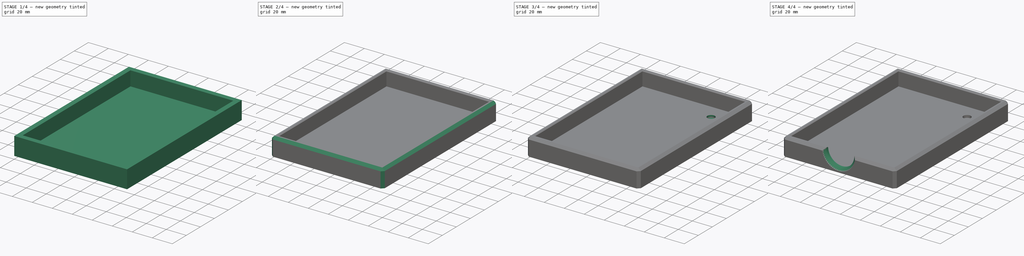
[diagram: build sequence overview — one tinted view per stage of 4, left to right]
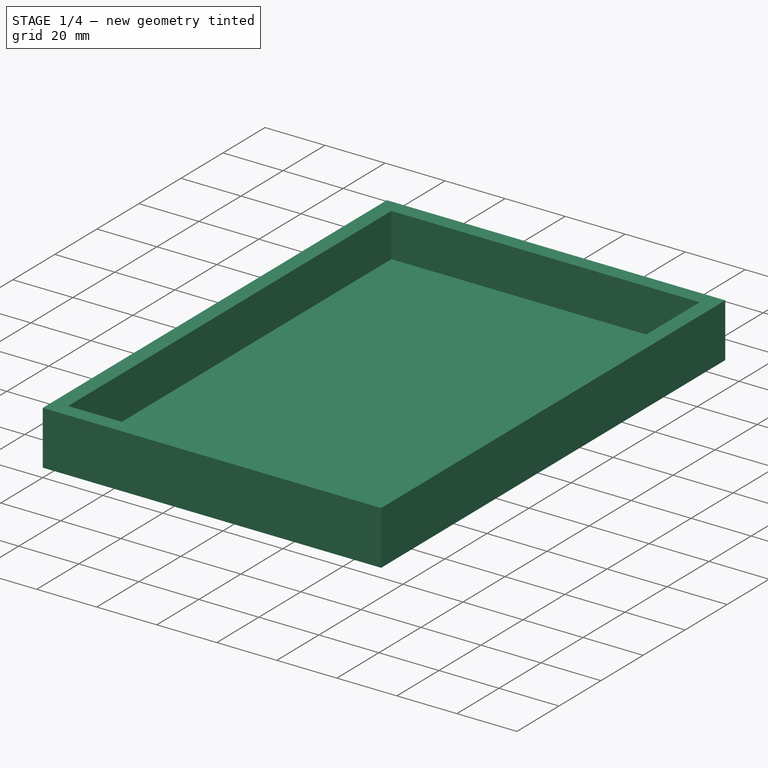
[diagram: stage 1 of 4 — iso view after this stage's code; geometry added in this stage tinted green]
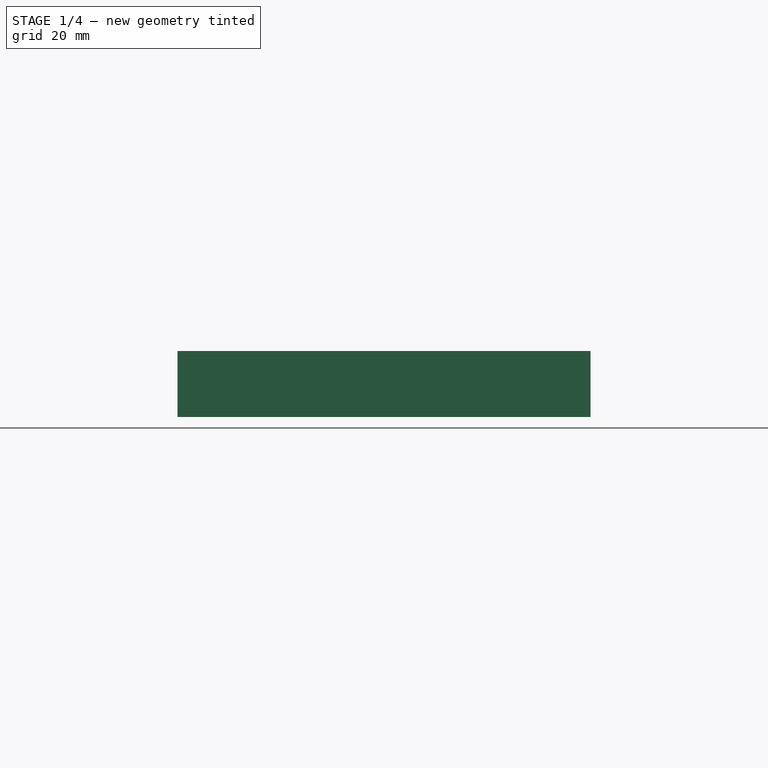
[diagram: stage 1 of 4 — front view after this stage's code; geometry added in this stage tinted green]
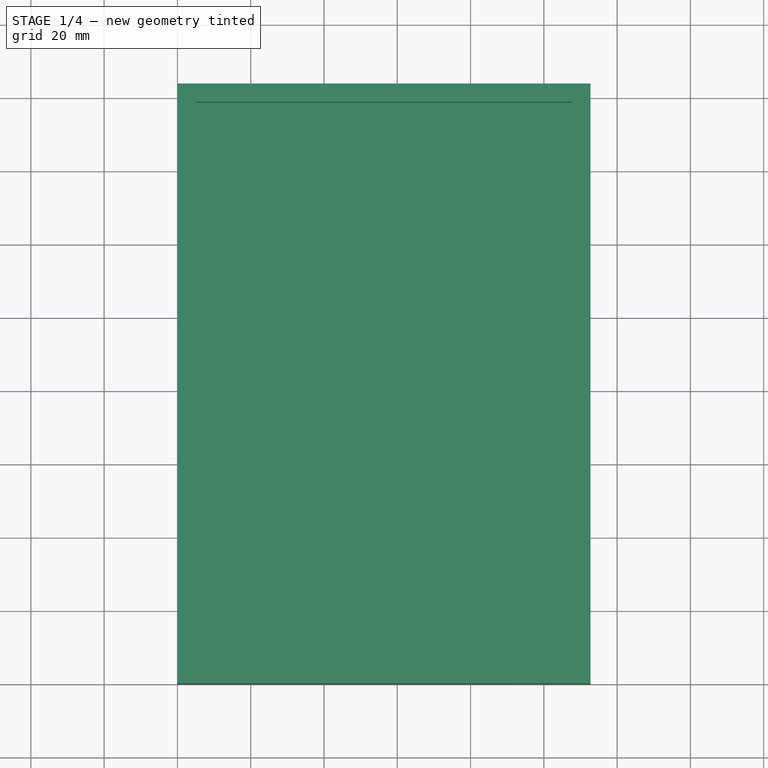
[diagram: stage 1 of 4 — top view after this stage's code; geometry added in this stage tinted green]
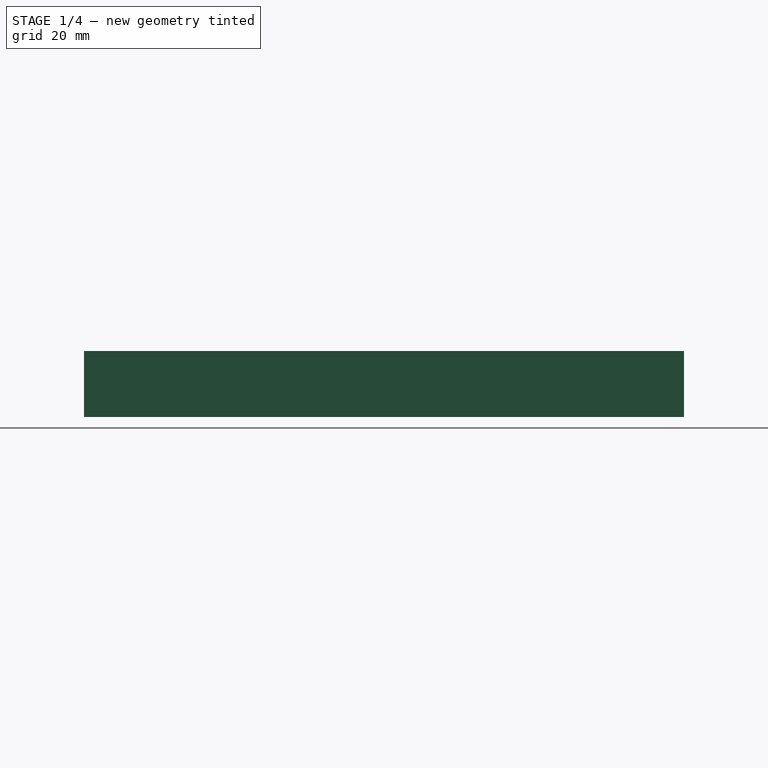
[diagram: stage 1 of 4 — right view after this stage's code; geometry added in this stage tinted green]
FCSTD DOCUMENT  (FreeCAD 0.19R24291 (Git))
Label: paper-mount
License: All rights reserved
LicenseURL: http://en.wikipedia.org/wiki/All_rights_reserved
objects: Sketcher::SketchObject×5, PartDesign::Pocket×5, PartDesign::Chamfer×3, PartDesign::Pad×2, PartDesign::Body×1
note: 26 computed .brp shape members not serialized (recipe doc carries the construction recipe); baked Part::Feature solids carry a one-line shape summary decoded from their .brp

FEATURE [Sketcher::SketchObject] Sketch
  FullyConstrained = true
  MapMode = 5
  Support = -> [XY_Plane]
  sketch-geometry (4):
    g0: LineSegment StartX=0 StartY=0 StartZ=0 EndX=112.75 EndY=0 EndZ=0
    g1: LineSegment StartX=112.75 StartY=0 StartZ=0 EndX=112.75 EndY=163.75 EndZ=0
    g2: LineSegment StartX=112.75 StartY=163.75 StartZ=0 EndX=0 EndY=163.75 EndZ=0
    g3: LineSegment StartX=0 StartY=163.75 StartZ=0 EndX=0 EndY=0 EndZ=0
  constraints (11):
    c: Coincident(g0,g1)
    c: Coincident(g1,g2)
    c: Coincident(g2,g3)
    c: Coincident(g3,g0)
    c: Horizontal(g0)
    c: Horizontal(g2)
    c: Vertical(g1)
    c: Vertical(g3)
    c: Coincident(g0,g-1)
    c: DistanceX(g2,g2) = 112.75
    c: DistanceY(g3,g3) = 163.75
FEATURE [PartDesign::Pad] Pad
  Direction = (1,1,1)
  Length = 18
  Length2 = 100
  Profile = -> Sketch
  Reversed = true
  Type = 0
FEATURE [Sketcher::SketchObject] Sketch001
  FullyConstrained = true
  MapMode = 5
  Support = -> [XY_Plane]
  sketch-geometry (4):
    g0: LineSegment StartX=5 StartY=5 StartZ=0 EndX=107.75 EndY=5 EndZ=0
    g1: LineSegment StartX=107.75 StartY=5 StartZ=0 EndX=107.75 EndY=158.75 EndZ=0
    g2: LineSegment StartX=107.75 StartY=158.75 StartZ=0 EndX=5 EndY=158.75 EndZ=0
    g3: LineSegment StartX=5 StartY=158.75 StartZ=0 EndX=5 EndY=5 EndZ=0
  constraints (12):
    c: Coincident(g0,g1)
    c: Coincident(g1,g2)
    c: Coincident(g2,g3)
    c: Coincident(g3,g0)
    c: Horizontal(g0)
    c: Horizontal(g2)
    c: Vertical(g1)
    c: Vertical(g3)
    c: DistanceX(g2,g2) = 102.75
    c: DistanceY(g3,g3) = 153.75
    c: DistanceX(g-1,g0) = 5
    c: DistanceY(g-1,g0) = 5
FEATURE [PartDesign::Pocket] Pocket
  BaseFeature = -> Pad
  Length = 14.5
  Length2 = 100
  Profile = -> Sketch001
  Type = 0
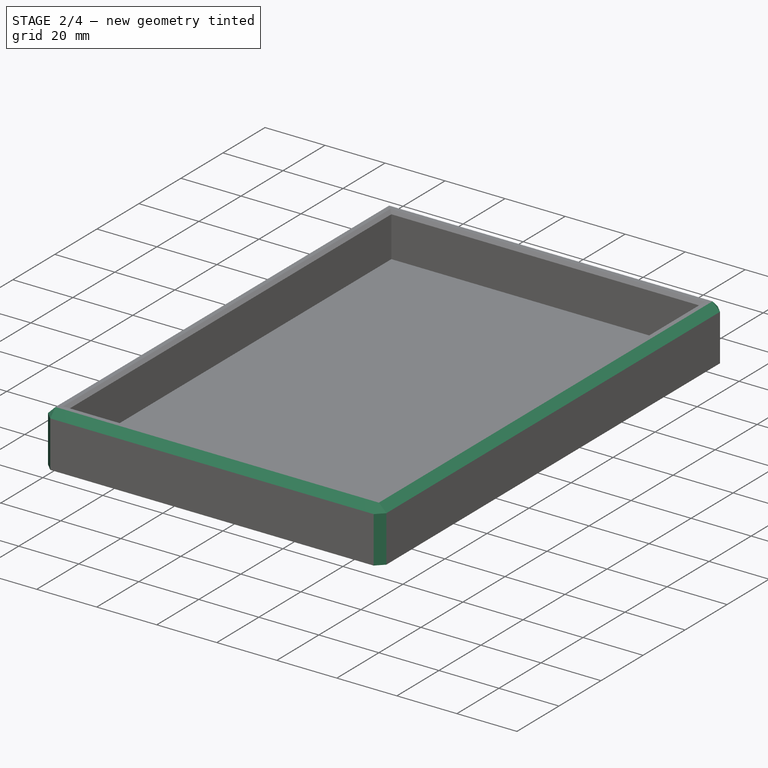
[diagram: stage 2 of 4 — iso view after this stage's code; geometry added in this stage tinted green]
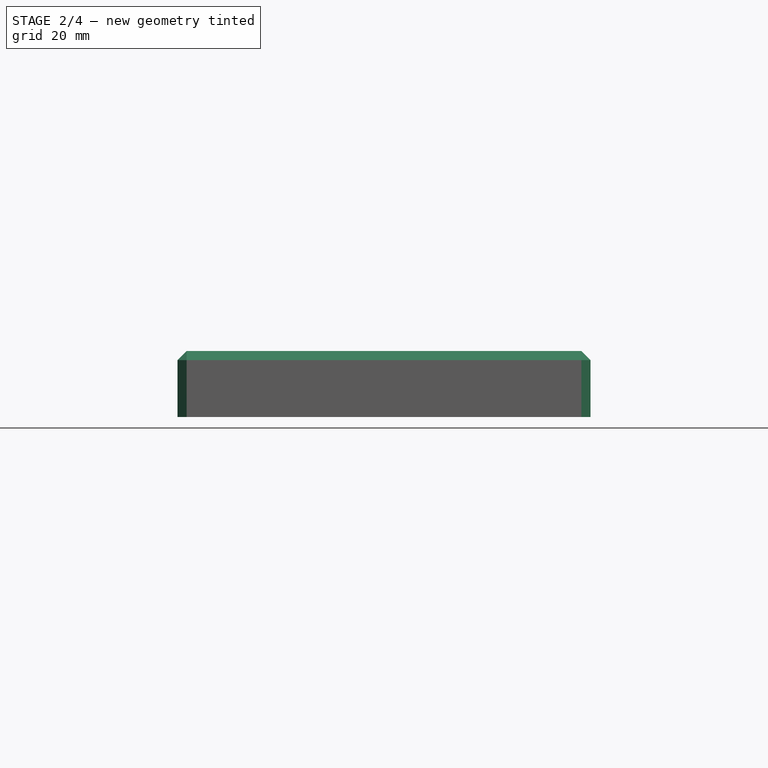
[diagram: stage 2 of 4 — front view after this stage's code; geometry added in this stage tinted green]
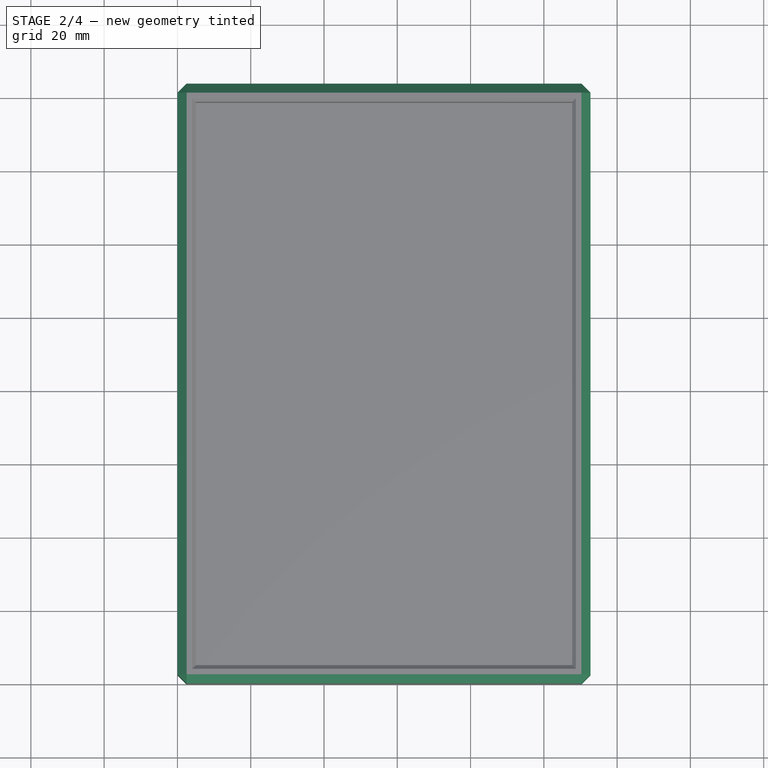
[diagram: stage 2 of 4 — top view after this stage's code; geometry added in this stage tinted green]
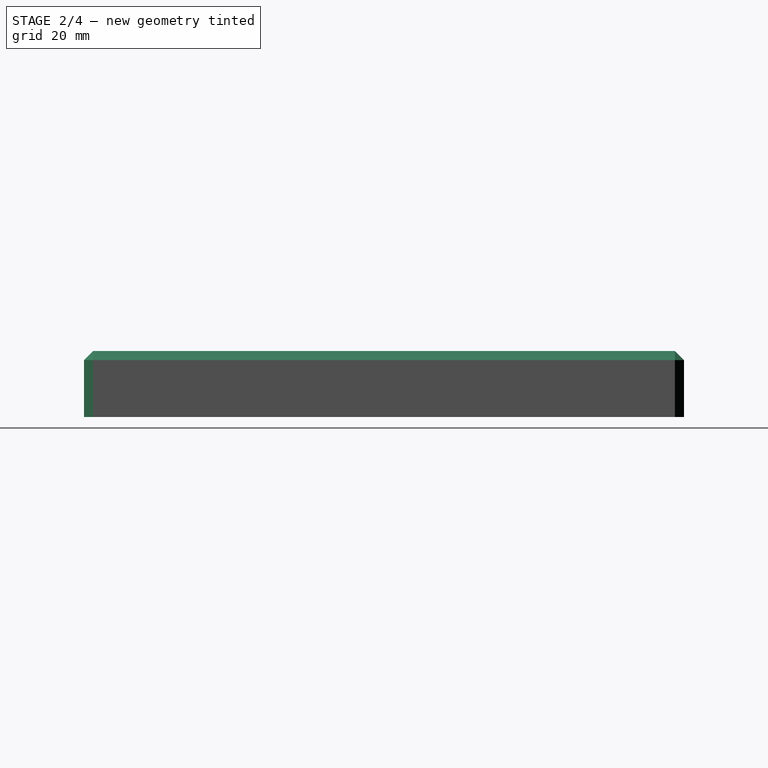
[diagram: stage 2 of 4 — right view after this stage's code; geometry added in this stage tinted green]
FEATURE [PartDesign::Chamfer] Chamfer
  Angle = 45
  Base = -> Pocket [Edge15,Edge14,Edge13,Edge12]
  BaseFeature = -> Pocket
  ChamferType = 0
  FlipDirection = false
  Size = 1
  Size2 = 1
  SupportTransform = false
FEATURE [PartDesign::Chamfer] Chamfer001
  Angle = 45
  Base = -> Chamfer [Edge6,Edge8,Edge7,Edge5,Edge17,Edge18,Edge22,Edge20]
  BaseFeature = -> Chamfer
  ChamferType = 0
  FlipDirection = false
  Size = 2.5
  Size2 = 1
  SupportTransform = false
FEATURE [Sketcher::SketchObject] Sketch002
  FullyConstrained = true
  MapMode = 5
  Placement = pos=(0,0,-18) rot=(1,0,0;3.14159rad)
  Support = -> [Chamfer001]
  sketch-geometry (76):
    g0: Circle CenterX=10 CenterY=-7.5 CenterZ=0 NormalX=0 NormalY=0 NormalZ=1 AngleXU=0 Radius=3.75
    g1: Circle CenterX=40 CenterY=-7.5 CenterZ=0 NormalX=0 NormalY=0 NormalZ=1 AngleXU=0 Radius=3.75
    g2: LineSegment StartX=10 StartY=-7.5 StartZ=0 EndX=40 EndY=-7.5 EndZ=0
    g3: Circle CenterX=70 CenterY=-7.5 CenterZ=0 NormalX=0 NormalY=0 NormalZ=1 AngleXU=0 Radius=3.75
    g4: LineSegment StartX=40 StartY=-7.5 StartZ=0 EndX=70 EndY=-7.5 EndZ=0
    g5: Circle CenterX=100 CenterY=-7.5 CenterZ=0 NormalX=0 NormalY=0 NormalZ=1 AngleXU=0 Radius=3.75
    g6: LineSegment StartX=70 StartY=-7.5 StartZ=0 EndX=100 EndY=-7.5 EndZ=0
    g7: Circle CenterX=10 CenterY=-37.5 CenterZ=0 NormalX=0 NormalY=0 NormalZ=1 AngleXU=0 Radius=3.75
    g8: LineSegment StartX=10 StartY=-7.5 StartZ=0 EndX=10 EndY=-37.5 EndZ=0
    g9: Circle CenterX=40 CenterY=-37.5 CenterZ=0 NormalX=0 NormalY=0 NormalZ=1 AngleXU=0 Radius=3.75
    g10: LineSegment StartX=10 StartY=-37.5 StartZ=0 EndX=40 EndY=-37.5 EndZ=0
    g11: Circle CenterX=70 CenterY=-37.5 CenterZ=0 NormalX=0 NormalY=0 NormalZ=1 AngleXU=0 Radius=3.75
    g12: LineSegment StartX=40 StartY=-37.5 StartZ=0 EndX=70 EndY=-37.5 EndZ=0
    g13: Circle CenterX=100 CenterY=-37.5 CenterZ=0 NormalX=0 NormalY=0 NormalZ=1 AngleXU=0 Radius=3.75
    g14: LineSegment StartX=70 StartY=-37.5 StartZ=0 EndX=100 EndY=-37.5 EndZ=0
    g15: Circle CenterX=10 CenterY=-67.5 CenterZ=0 NormalX=0 NormalY=0 NormalZ=1 AngleXU=0 Radius=3.75
    g16: LineSegment StartX=10 StartY=-37.5 StartZ=0 EndX=10 EndY=-67.5 EndZ=0
    g17: Circle CenterX=40 CenterY=-67.5 CenterZ=0 NormalX=0 NormalY=0 NormalZ=1 AngleXU=0 Radius=3.75
    g18: LineSegment StartX=10 StartY=-67.5 StartZ=0 EndX=40 EndY=-67.5 EndZ=0
    g19: Circle CenterX=70 CenterY=-67.5 CenterZ=0 NormalX=0 NormalY=0 NormalZ=1 AngleXU=0 Radius=3.75
    g20: LineSegment StartX=40 StartY=-67.5 StartZ=0 EndX=70 EndY=-67.5 EndZ=0
    g21: Circle CenterX=100 CenterY=-67.5 CenterZ=0 NormalX=0 NormalY=0 NormalZ=1 AngleXU=0 Radius=3.75
    g22: LineSegment StartX=70 StartY=-67.5 StartZ=0 EndX=100 EndY=-67.5 EndZ=0
    g23: Circle CenterX=10 CenterY=-97.5 CenterZ=0 NormalX=0 NormalY=0 NormalZ=1 AngleXU=0 Radius=3.75
    g24: LineSegment StartX=10 StartY=-67.5 StartZ=0 EndX=10 EndY=-97.5 EndZ=0
    g25: Circle CenterX=40 CenterY=-97.5 CenterZ=0 NormalX=0 NormalY=0 NormalZ=1 AngleXU=0 Radius=3.75
    g26: LineSegment StartX=10 StartY=-97.5 StartZ=0 EndX=40 EndY=-97.5 EndZ=0
    g27: Circle CenterX=70 CenterY=-97.5 CenterZ=0 NormalX=0 NormalY=0 NormalZ=1 AngleXU=0 Radius=3.75
    g28: LineSegment StartX=40 StartY=-97.5 StartZ=0 EndX=70 EndY=-97.5 EndZ=0
    g29: Circle CenterX=100 CenterY=-97.5 CenterZ=0 NormalX=0 NormalY=0 NormalZ=1 AngleXU=0 Radius=3.75
    g30: LineSegment StartX=70 StartY=-97.5 StartZ=0 EndX=100 EndY=-97.5 EndZ=0
    g31: Circle CenterX=10 CenterY=-127.5 CenterZ=0 NormalX=0 NormalY=0 NormalZ=1 AngleXU=0 Radius=3.75
    g32: LineSegment StartX=10 StartY=-97.5 StartZ=0 EndX=10 EndY=-127.5 EndZ=0
    g33: Circle CenterX=40 CenterY=-127.5 CenterZ=0 NormalX=0 NormalY=0 NormalZ=1 AngleXU=0 Radius=3.75
    g34: LineSegment StartX=10 StartY=-127.5 StartZ=0 EndX=40 EndY=-127.5 EndZ=0
    g35: Circle CenterX=70 CenterY=-127.5 CenterZ=0 NormalX=0 NormalY=0 NormalZ=1 AngleXU=0 Radius=3.75
    g36: LineSegment StartX=40 StartY=-127.5 StartZ=0 EndX=70 EndY=-127.5 EndZ=0
    g37: Circle CenterX=100 CenterY=-127.5 CenterZ=0 NormalX=0 NormalY=0 NormalZ=1 AngleXU=0 Radius=3.75
    g38: LineSegment StartX=70 StartY=-127.5 StartZ=0 EndX=100 EndY=-127.5 EndZ=0
    g39: Circle CenterX=10 CenterY=-157.5 CenterZ=0 NormalX=0 NormalY=0 NormalZ=1 AngleXU=0 Radius=3.75
    g40: LineSegment StartX=10 StartY=-127.5 StartZ=0 EndX=10 EndY=-157.5 EndZ=0
    g41: Circle CenterX=40 CenterY=-157.5 CenterZ=0 NormalX=0 NormalY=0 NormalZ=1 AngleXU=0 Radius=3.75
    g42: LineSegment StartX=10 StartY=-157.5 StartZ=0 EndX=40 EndY=-157.5 EndZ=0
    g43: Circle CenterX=70 CenterY=-157.5 CenterZ=0 NormalX=0 NormalY=0 NormalZ=1 AngleXU=0 Radius=3.75
    g44: LineSegment StartX=40 StartY=-157.5 StartZ=0 EndX=70 EndY=-157.5 EndZ=0
    g45: Circle CenterX=100 CenterY=-157.5 CenterZ=0 NormalX=0 NormalY=0 NormalZ=1 AngleXU=0 Radius=3.75
    g46: LineSegment StartX=70 StartY=-157.5 StartZ=0 EndX=100 EndY=-157.5 EndZ=0
    g47: Circle CenterX=25 CenterY=-22.5 CenterZ=0 NormalX=0 NormalY=0 NormalZ=1 AngleXU=0 Radius=3.75
    g48: Circle CenterX=55 CenterY=-22.5 CenterZ=0 NormalX=0 NormalY=0 NormalZ=1 AngleXU=0 Radius=3.75
    g49: LineSegment StartX=25 StartY=-22.5 StartZ=0 EndX=55 EndY=-22.5 EndZ=0
    g50: Circle CenterX=85 CenterY=-22.5 CenterZ=0 NormalX=0 NormalY=0 NormalZ=1 AngleXU=0 Radius=3.75
    g51: LineSegment StartX=55 StartY=-22.5 StartZ=0 EndX=85 EndY=-22.5 EndZ=0
    g52: Circle CenterX=25 CenterY=-52.5 CenterZ=0 NormalX=0 NormalY=0 NormalZ=1 AngleXU=0 Radius=3.75
    g53: LineSegment StartX=25 StartY=-22.5 StartZ=0 EndX=25 EndY=-52.5 EndZ=0
    g54: Circle CenterX=55 CenterY=-52.5 CenterZ=0 NormalX=0 NormalY=0 NormalZ=1 AngleXU=0 Radius=3.75
    g55: LineSegment StartX=25 StartY=-52.5 StartZ=0 EndX=55 EndY=-52.5 EndZ=0
    g56: Circle CenterX=85 CenterY=-52.5 CenterZ=0 NormalX=0 NormalY=0 NormalZ=1 AngleXU=0 Radius=3.75
    g57: LineSegment StartX=55 StartY=-52.5 StartZ=0 EndX=85 EndY=-52.5 EndZ=0
    g58: Circle CenterX=25 CenterY=-82.5 CenterZ=0 NormalX=0 NormalY=0 NormalZ=1 AngleXU=0 Radius=3.75
    g59: LineSegment StartX=25 StartY=-52.5 StartZ=0 EndX=25 EndY=-82.5 EndZ=0
    g60: Circle CenterX=55 CenterY=-82.5 CenterZ=0 NormalX=0 NormalY=0 NormalZ=1 AngleXU=0 Radius=3.75
    g61: LineSegment StartX=25 StartY=-82.5 StartZ=0 EndX=55 EndY=-82.5 EndZ=0
    g62: Circle CenterX=85 CenterY=-82.5 CenterZ=0 NormalX=0 NormalY=0 NormalZ=1 AngleXU=0 Radius=3.75
    g63: LineSegment StartX=55 StartY=-82.5 StartZ=0 EndX=85 EndY=-82.5 EndZ=0
    g64: Circle CenterX=25 CenterY=-112.5 CenterZ=0 NormalX=0 NormalY=0 NormalZ=1 AngleXU=0 Radius=3.75
    g65: LineSegment StartX=25 StartY=-82.5 StartZ=0 EndX=25 EndY=-112.5 EndZ=0
    g66: Circle CenterX=55 CenterY=-112.5 CenterZ=0 NormalX=0 NormalY=0 NormalZ=1 AngleXU=0 Radius=3.75
    g67: LineSegment StartX=25 StartY=-112.5 StartZ=0 EndX=55 EndY=-112.5 EndZ=0
    g68: Circle CenterX=85 CenterY=-112.5 CenterZ=0 NormalX=0 NormalY=0 NormalZ=1 AngleXU=0 Radius=3.75
    g69: LineSegment StartX=55 StartY=-112.5 StartZ=0 EndX=85 EndY=-112.5 EndZ=0
    g70: Circle CenterX=25 CenterY=-142.5 CenterZ=0 NormalX=0 NormalY=0 NormalZ=1 AngleXU=0 Radius=3.75
    g71: LineSegment StartX=25 StartY=-112.5 StartZ=0 EndX=25 EndY=-142.5 EndZ=0
    g72: Circle CenterX=55 CenterY=-142.5 CenterZ=0 NormalX=0 NormalY=0 NormalZ=1 AngleXU=0 Radius=3.75
    g73: LineSegment StartX=25 StartY=-142.5 StartZ=0 EndX=55 EndY=-142.5 EndZ=0
    g74: Circle CenterX=85 CenterY=-142.5 CenterZ=0 NormalX=0 NormalY=0 NormalZ=1 AngleXU=0 Radius=3.75
    g75: LineSegment StartX=55 StartY=-142.5 StartZ=0 EndX=85 EndY=-142.5 EndZ=0
  constraints (191):
    c: Diameter(g0) = 7.5
    c: Diameter(g1) = 7.5
    c: Coincident(g0,g2)
    c: Coincident(g1,g2)
    c: Distance(g2) = 30
    c: Diameter(g3) = 7.5
    c: Coincident(g1,g4)
    c: Coincident(g3,g4)
    c: Equal(g2,g4)
    c: Parallel(g4,g2)
    c: Diameter(g5) = 7.5
    c: Coincident(g3,g6)
    c: Coincident(g5,g6)
    c: Equal(g2,g6)
    c: Parallel(g6,g2)
    c: Diameter(g7) = 7.5
    c: Coincident(g0,g8)
    c: Coincident(g7,g8)
    c: Equal(g8,g2)
    c: Perpendicular(g8,g2)
    c: Diameter(g9) = 7.5
    c: Coincident(g7,g10)
    c: Coincident(g9,g10)
    c: Equal(g2,g10)
    c: Parallel(g10,g2)
    c: Diameter(g11) = 7.5
    c: Coincident(g9,g12)
    c: Coincident(g11,g12)
    c: Equal(g2,g12)
    c: Parallel(g12,g2)
    c: Diameter(g13) = 7.5
    c: Coincident(g11,g14)
    c: Coincident(g13,g14)
    c: Equal(g2,g14)
    c: Parallel(g14,g2)
    c: Diameter(g15) = 7.5
    c: Coincident(g7,g16)
    c: Coincident(g15,g16)
    c: Equal(g8,g16)
    c: Perpendicular(g16,g2)
    c: Diameter(g17) = 7.5
    c: Coincident(g15,g18)
    c: Coincident(g17,g18)
    c: Equal(g2,g18)
    c: Parallel(g18,g2)
    c: Diameter(g19) = 7.5
    c: Coincident(g17,g20)
    c: Coincident(g19,g20)
    c: Equal(g2,g20)
    c: Parallel(g20,g2)
    c: Diameter(g21) = 7.5
    c: Coincident(g19,g22)
    c: Coincident(g21,g22)
    c: Equal(g2,g22)
    c: Parallel(g22,g2)
    c: Diameter(g23) = 7.5
    c: Coincident(g15,g24)
    c: Coincident(g23,g24)
    c: Equal(g8,g24)
    c: Perpendicular(g24,g2)
    c: Diameter(g25) = 7.5
    c: Coincident(g23,g26)
    c: Coincident(g25,g26)
    c: Equal(g2,g26)
    c: Parallel(g26,g2)
    c: Diameter(g27) = 7.5
    c: Coincident(g25,g28)
    c: Coincident(g27,g28)
    c: Equal(g2,g28)
    c: Parallel(g28,g2)
    c: Diameter(g29) = 7.5
    c: Coincident(g27,g30)
    c: Coincident(g29,g30)
    c: Equal(g2,g30)
    c: Parallel(g30,g2)
    c: Diameter(g31) = 7.5
    c: Coincident(g23,g32)
    c: Coincident(g31,g32)
    c: Equal(g8,g32)
    c: Perpendicular(g32,g2)
    c: Diameter(g33) = 7.5
    c: Coincident(g31,g34)
    c: Coincident(g33,g34)
    c: Equal(g2,g34)
    c: Parallel(g34,g2)
    c: Diameter(g35) = 7.5
    c: Coincident(g33,g36)
    c: Coincident(g35,g36)
    c: Equal(g2,g36)
    c: Parallel(g36,g2)
    c: Diameter(g37) = 7.5
    c: Coincident(g35,g38)
    c: Coincident(g37,g38)
    c: Equal(g2,g38)
    c: Parallel(g38,g2)
    c: Diameter(g39) = 7.5
    c: Coincident(g31,g40)
    c: Coincident(g39,g40)
    c: Equal(g8,g40)
    c: Perpendicular(g40,g2)
    c: Diameter(g41) = 7.5
    c: Coincident(g39,g42)
    c: Coincident(g41,g42)
    c: Equal(g2,g42)
    c: Parallel(g42,g2)
    c: Diameter(g43) = 7.5
    c: Coincident(g41,g44)
    c: Coincident(g43,g44)
    c: Equal(g2,g44)
    c: Parallel(g44,g2)
    c: Diameter(g45) = 7.5
    c: Coincident(g43,g46)
    c: Coincident(g45,g46)
    c: Equal(g2,g46)
    c: Parallel(g46,g2)
    c: Horizontal(g2)
    c: DistanceX(g-1,g0) = 10
    c: DistanceY(g0,g-1) = 7.5
    c: Diameter(g47) = 7.5
    c: Diameter(g48) = 7.5
    c: Coincident(g47,g49)
    c: Coincident(g48,g49)
    c: Distance(g49) = 30
    c: Diameter(g50) = 7.5
    c: Coincident(g48,g51)
    c: Coincident(g50,g51)
    c: Equal(g49,g51)
    c: Parallel(g51,g49)
    c: Diameter(g52) = 7.5
    c: Coincident(g47,g53)
    c: Coincident(g52,g53)
    c: Equal(g53,g49)
    c: Perpendicular(g53,g49)
    c: Diameter(g54) = 7.5
    c: Coincident(g52,g55)
    c: Coincident(g54,g55)
    c: Equal(g49,g55)
    c: Parallel(g55,g49)
    c: Diameter(g56) = 7.5
    c: Coincident(g54,g57)
    c: Coincident(g56,g57)
    c: Equal(g49,g57)
    c: Parallel(g57,g49)
    c: Diameter(g58) = 7.5
    c: Coincident(g52,g59)
    c: Coincident(g58,g59)
    c: Equal(g53,g59)
    c: Perpendicular(g59,g49)
    c: Diameter(g60) = 7.5
    c: Coincident(g58,g61)
    c: Coincident(g60,g61)
    c: Equal(g49,g61)
    c: Parallel(g61,g49)
    c: Diameter(g62) = 7.5
    c: Coincident(g60,g63)
    c: Coincident(g62,g63)
    c: Equal(g49,g63)
    c: Parallel(g63,g49)
    c: Diameter(g64) = 7.5
    c: Coincident(g58,g65)
    c: Coincident(g64,g65)
    c: Equal(g53,g65)
    c: Perpendicular(g65,g49)
    c: Diameter(g66) = 7.5
    c: Coincident(g64,g67)
    c: Coincident(g66,g67)
    c: Equal(g49,g67)
    c: Parallel(g67,g49)
    c: Diameter(g68) = 7.5
    c: Coincident(g66,g69)
    c: Coincident(g68,g69)
    c: Equal(g49,g69)
    c: Parallel(g69,g49)
    c: Diameter(g70) = 7.5
    c: Coincident(g64,g71)
    c: Coincident(g70,g71)
    c: Equal(g53,g71)
    c: Perpendicular(g71,g49)
    c: Diameter(g72) = 7.5
    c: Coincident(g70,g73)
    c: Coincident(g72,g73)
    c: Equal(g49,g73)
    c: Parallel(g73,g49)
    c: Diameter(g74) = 7.5
    c: Coincident(g72,g75)
    c: Coincident(g74,g75)
    c: Equal(g49,g75)
    c: Parallel(g75,g49)
    c: Horizontal(g49)
    c: DistanceX(g0,g47) = 15
    c: DistanceY(g47,g0) = 15
FEATURE [PartDesign::Pocket] Pocket001
  BaseFeature = -> Chamfer001
  Length = 2
  Length2 = 100
  Profile = -> Sketch002
  Type = 0
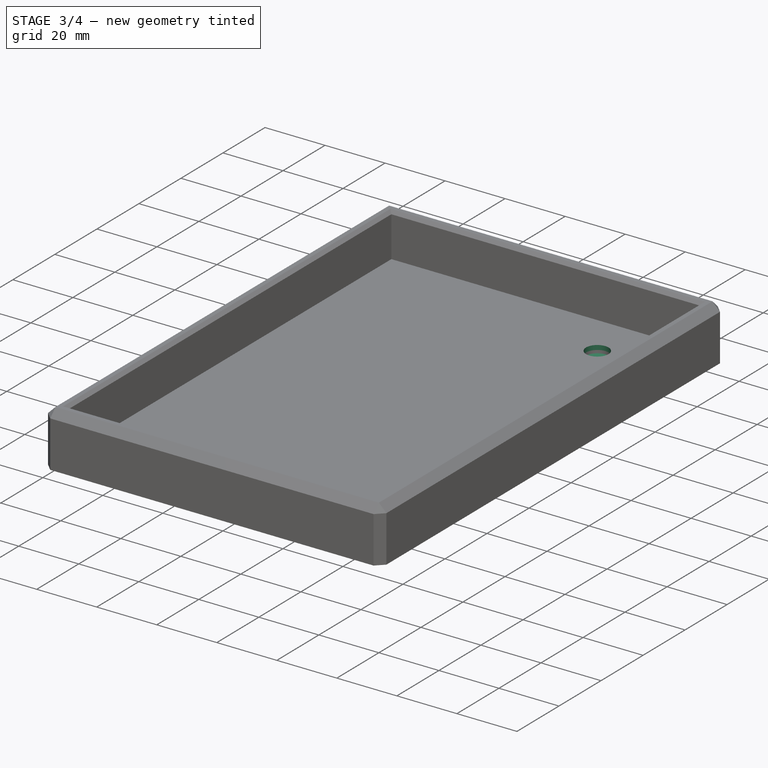
[diagram: stage 3 of 4 — iso view after this stage's code; geometry added in this stage tinted green]
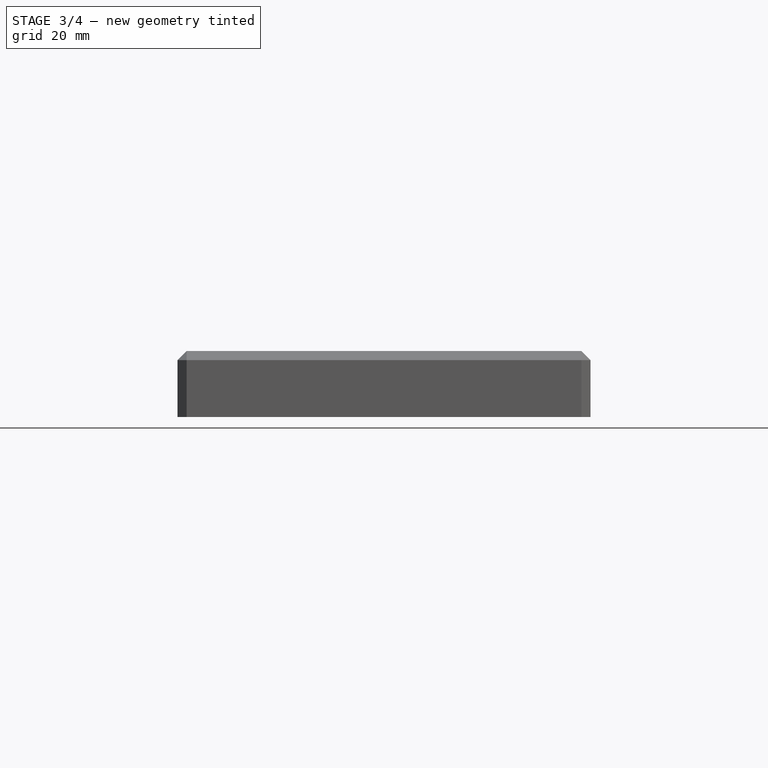
[diagram: stage 3 of 4 — front view after this stage's code; geometry added in this stage tinted green]
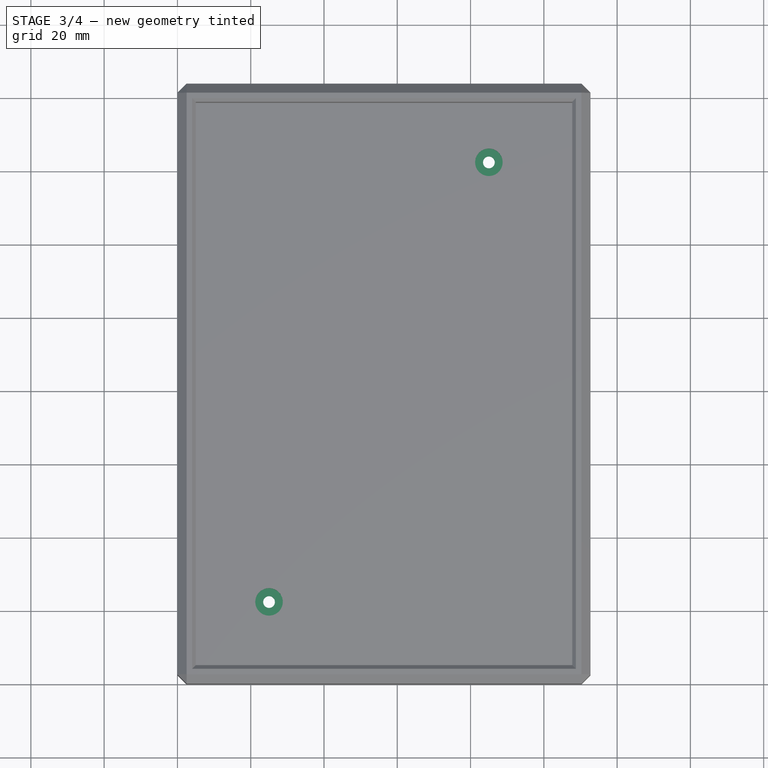
[diagram: stage 3 of 4 — top view after this stage's code; geometry added in this stage tinted green]
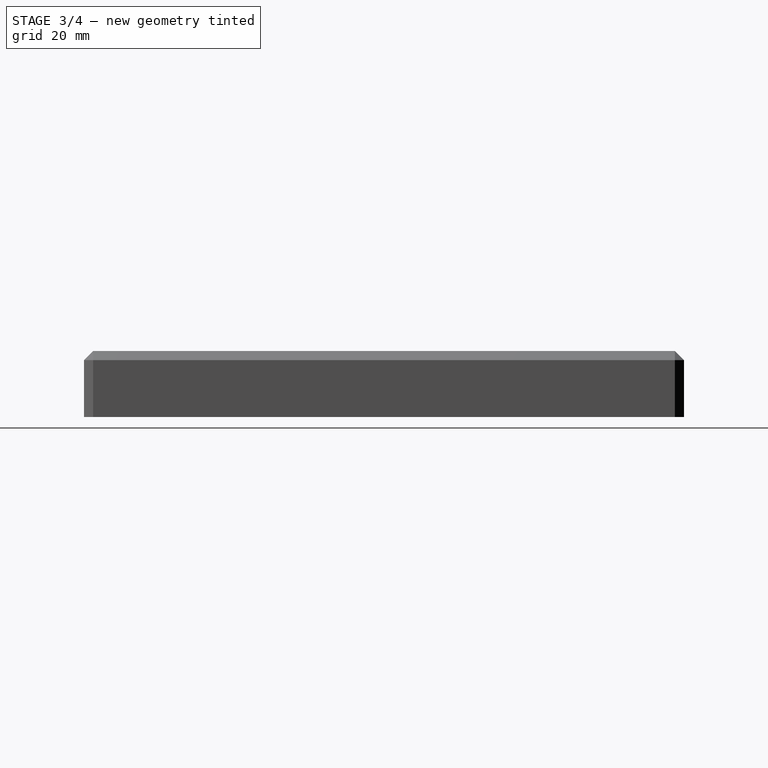
[diagram: stage 3 of 4 — right view after this stage's code; geometry added in this stage tinted green]
FEATURE [PartDesign::Pocket] Pocket002
  BaseFeature = -> Pocket001
  Length = 5
  Length2 = 100
  Profile = -> Pocket001 [Face68]
  Type = 0
FEATURE [PartDesign::Pocket] Pocket003
  BaseFeature = -> Pocket002
  Length = 5
  Length2 = 100
  Profile = -> Pocket002 [Face104]
  Type = 0
FEATURE [Sketcher::SketchObject] Sketch003
  ExternalGeometry = -> [Pocket003]
  FullyConstrained = false
  MapMode = 5
  Placement = pos=(0,0,-18) rot=(1,0,0;3.14159rad)
  Support = -> [Pocket003]
  sketch-geometry (4):
    g0: Circle CenterX=25 CenterY=-22.5 CenterZ=0 NormalX=0 NormalY=0 NormalZ=1 AngleXU=0 Radius=1.6
    g1: Circle CenterX=85 CenterY=-142.5 CenterZ=0 NormalX=0 NormalY=0 NormalZ=1 AngleXU=0 Radius=1.6
    g2: Circle CenterX=25 CenterY=-22.5 CenterZ=0 NormalX=0 NormalY=0 NormalZ=1 AngleXU=0 Radius=5.81567
    g3: Circle CenterX=85 CenterY=-142.5 CenterZ=0 NormalX=0 NormalY=0 NormalZ=1 AngleXU=0 Radius=5.98882
  constraints (6):
    c: Coincident(g0,g-3)
    c: Coincident(g1,g-4)
    c: Diameter(g1) = 3.2
    c: Diameter(g0) = 3.2
    c: Coincident(g2,g0)
    c: Coincident(g3,g1)
FEATURE [PartDesign::Pad] Pad001
  BaseFeature = -> Pocket003
  Direction = (1,1,1)
  Length = 1
  Length2 = 100
  Profile = -> Sketch003
  Reversed = true
  Type = 0
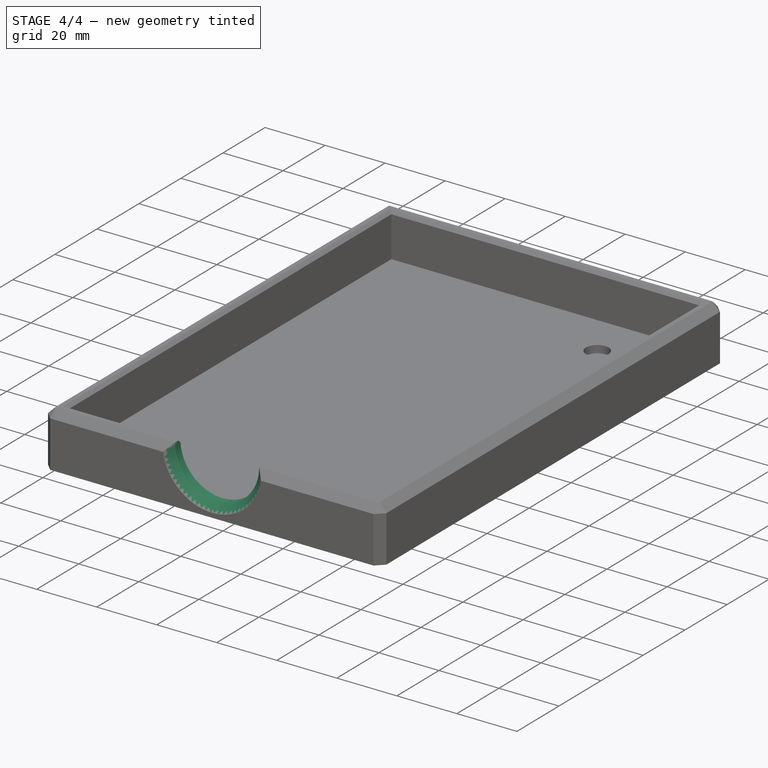
[diagram: stage 4 of 4 — iso view after this stage's code; geometry added in this stage tinted green]
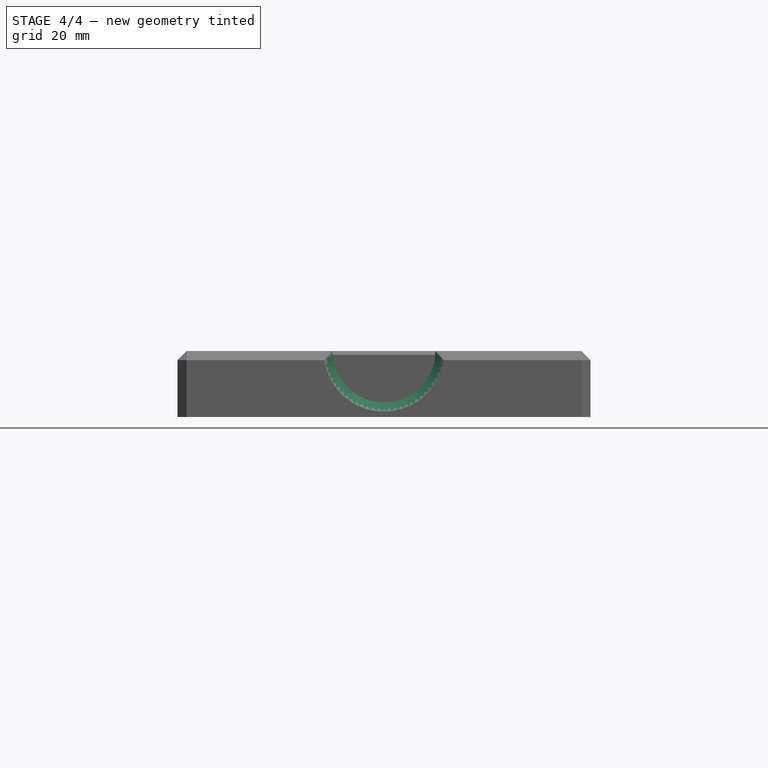
[diagram: stage 4 of 4 — front view after this stage's code; geometry added in this stage tinted green]
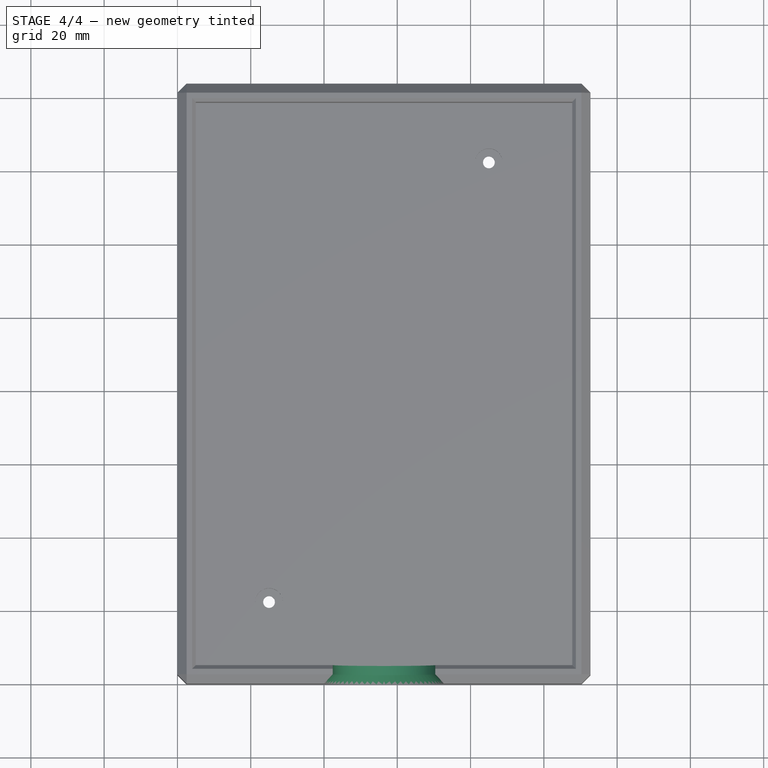
[diagram: stage 4 of 4 — top view after this stage's code; geometry added in this stage tinted green]
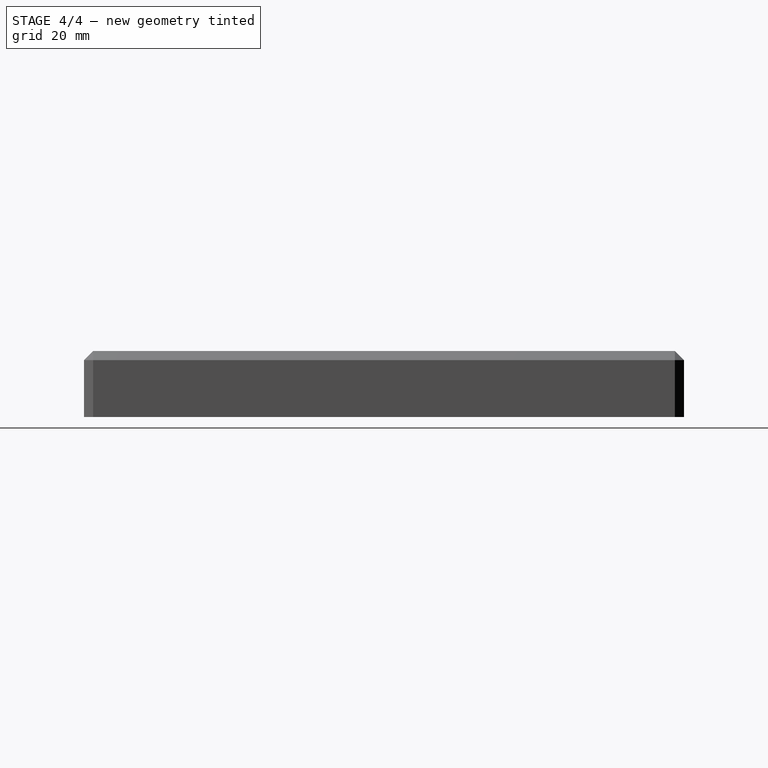
[diagram: stage 4 of 4 — right view after this stage's code; geometry added in this stage tinted green]
FEATURE [Sketcher::SketchObject] Sketch004
  ExternalGeometry = -> [Pad001]
  FullyConstrained = true
  MapMode = 5
  Placement = pos=(0,0,0) rot=(1,0,0;1.5708rad)
  Support = -> [XZ_Plane]
  sketch-geometry (1):
    g0: Circle CenterX=56.375 CenterY=0 CenterZ=0 NormalX=0 NormalY=0 NormalZ=1 AngleXU=0 Radius=14
  constraints (2):
    c: Symmetric(g-4,g-4,g0)
    c: Diameter(g0) = 28
FEATURE [PartDesign::Pocket] Pocket004
  BaseFeature = -> Pad001
  Length = 5
  Length2 = 100
  Profile = -> Sketch004
  Type = 0
FEATURE [PartDesign::Chamfer] Chamfer002
  Angle = 45
  Base = -> Pocket004 [Edge26]
  BaseFeature = -> Pocket004
  ChamferType = 0
  FlipDirection = false
  Size = 2.5
  Size2 = 1
  SupportTransform = false
FEATURE [PartDesign::Body] Body
  Group = -> [Sketch,Pad,Sketch001,Pocket,Chamfer,Chamfer001,Sketch002,Pocket001,Pocket002,Pocket003,Sketch003,Pad001,Sketch004,Pocket004,Chamfer002]
  Origin = -> Origin
  Tip = -> Chamfer002
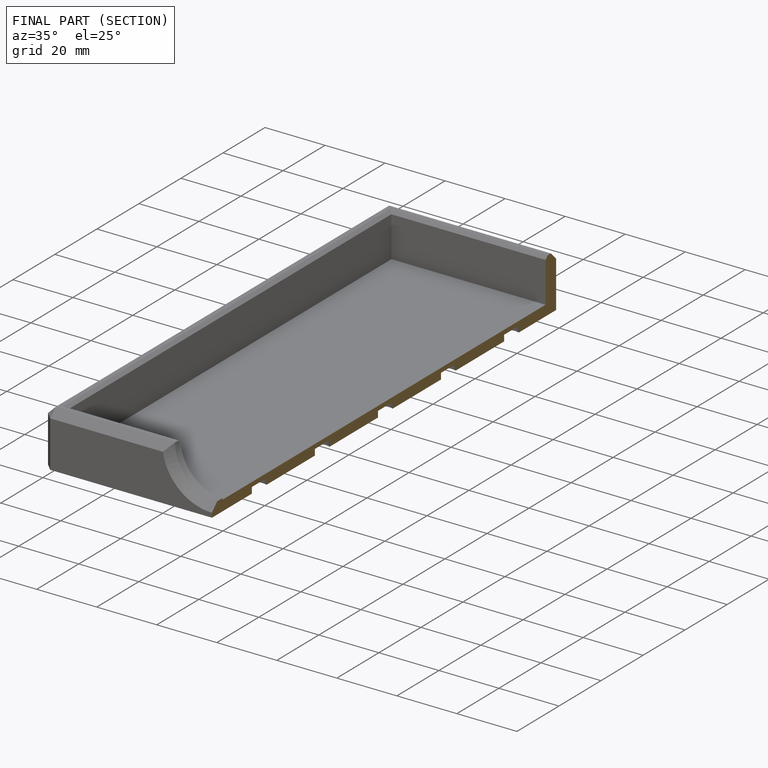
[diagram: finished part — half-section view (interior)]
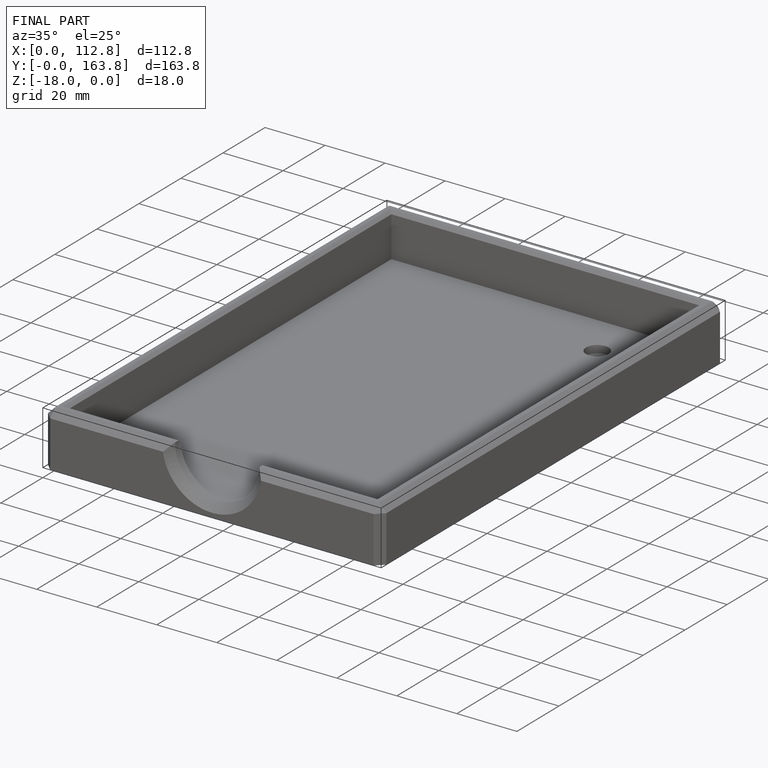
[diagram: finished part — iso view with bounding-box wireframe]
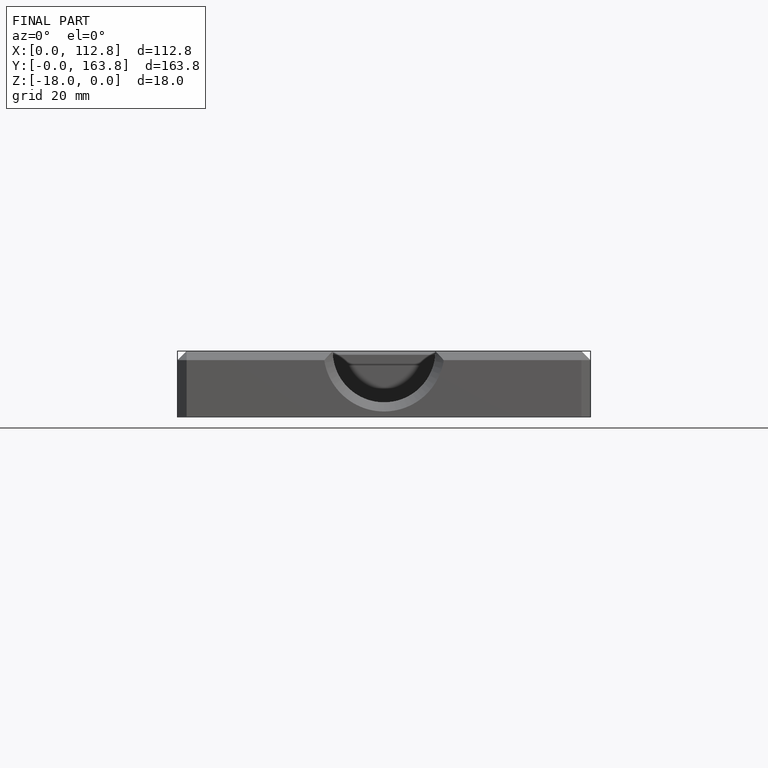
[diagram: finished part — front view with bounding-box wireframe]
